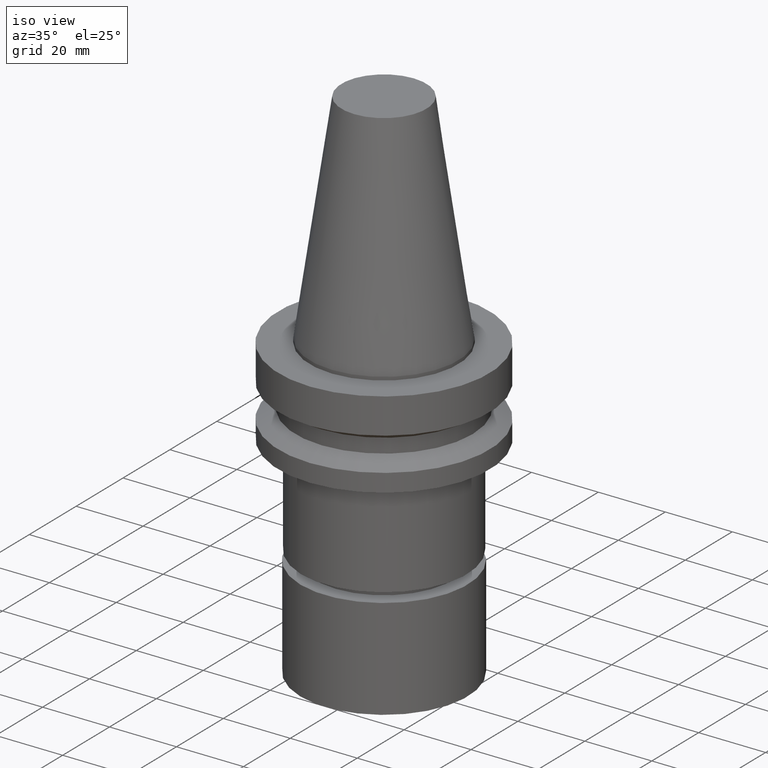
[diagram: clean part render]
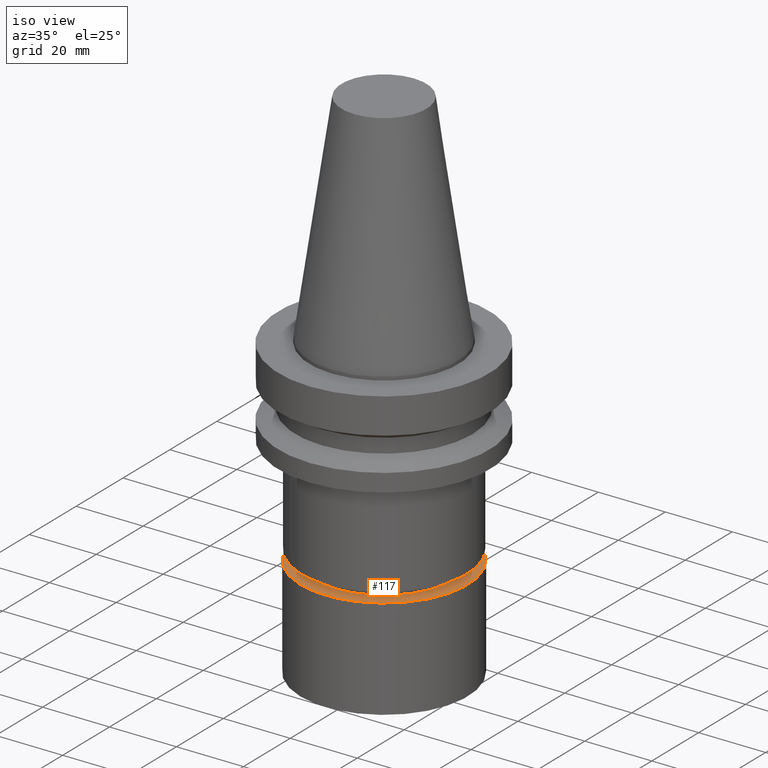
[diagram: same view with one face highlighted and labeled with its STEP entity id]
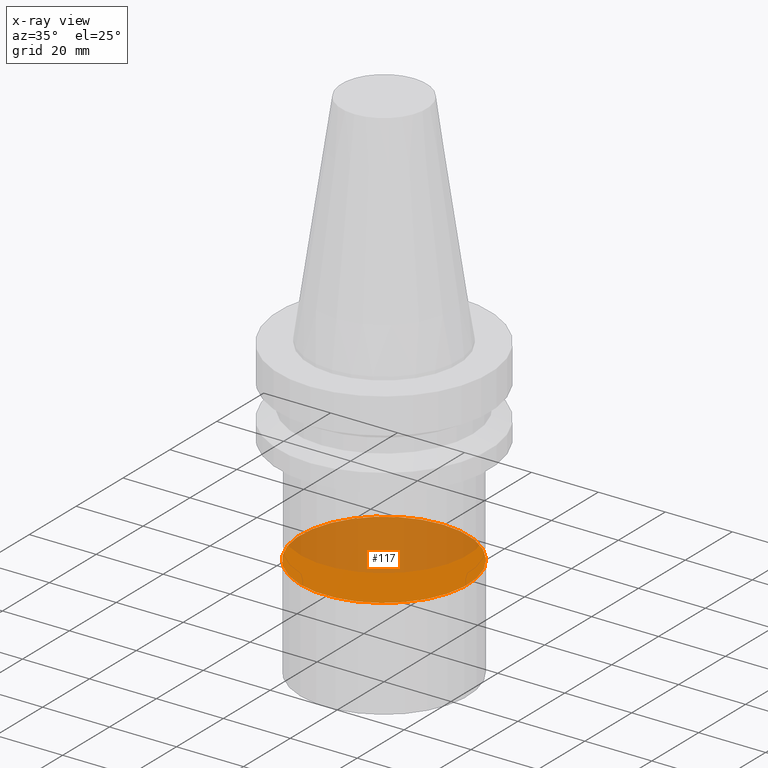
[diagram: x-ray of the same camera — body ghosted, the highlighted face saturated]
A machine part, iso view. The second image highlights one B-rep face of the part: STEP entity #117.
The next image is the same camera in x-ray: the body ghosted, the highlighted face saturated — about 57% of this face is hidden behind the body in this view.
In plain terms, the highlighted planar face has unit normal (-0, 0, 1).
Its self-contained STEP definition (entity closure, byte-faithful):
#109=EDGE_CURVE('Unnamed[1]',#254,#254,#255,.T.);
#117=ADVANCED_FACE('Unnamed[1]',(#266),#267,.T.);
#254=VERTEX_POINT('',#444);
#255=CIRCLE('',#445,24.9999999999999);
#266=FACE_OUTER_BOUND('',#459,.T.);
#267=PLANE('',#460);
#444=CARTESIAN_POINT('',(3.66169392945059E-015,25.0,-59.8));
#445=AXIS2_PLACEMENT_3D('',#639,#640,#641);
#459=EDGE_LOOP('',(#652));
#460=AXIS2_PLACEMENT_3D('',#653,#654,#655);
#639=CARTESIAN_POINT('',(3.66169392945059E-015,4.61248217534082E-014,-59.8));
#640=DIRECTION('',(6.12323399573677E-017,-2.45986715532911E-016,-1.0));
#641=DIRECTION('',(1.02351894597385E-032,1.0,-2.45986715532911E-016));
#652=ORIENTED_EDGE('',*,*,#109,.F.);
#653=CARTESIAN_POINT('',(3.66169392945059E-015,12.5,-59.8));
#654=DIRECTION('',(-6.12323399573677E-017,4.45969508693347E-016,1.0));
#655=DIRECTION('',(-2.24806038361622E-032,-1.0,4.45969508693347E-016));